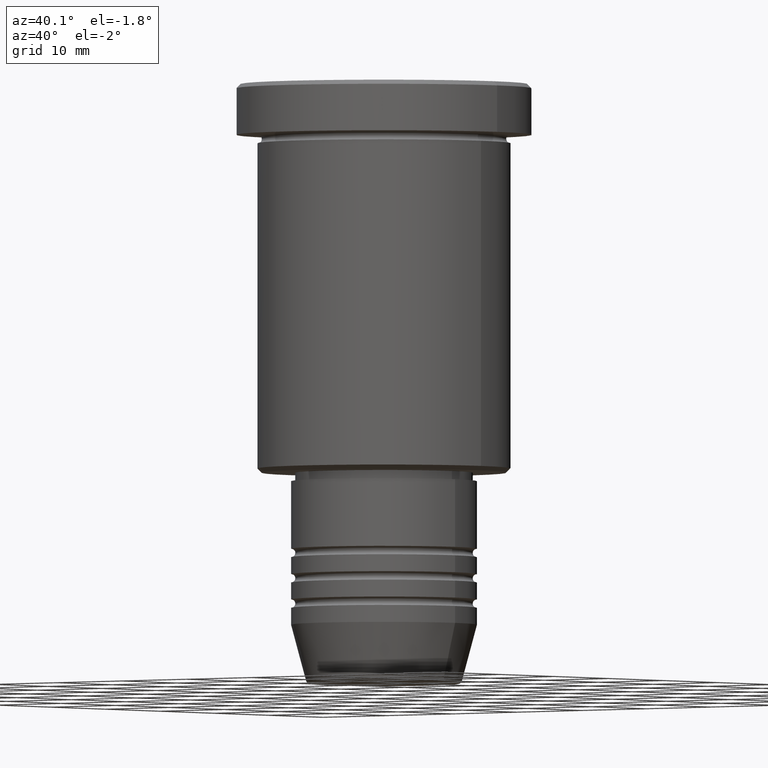
[diagram: clean part render]
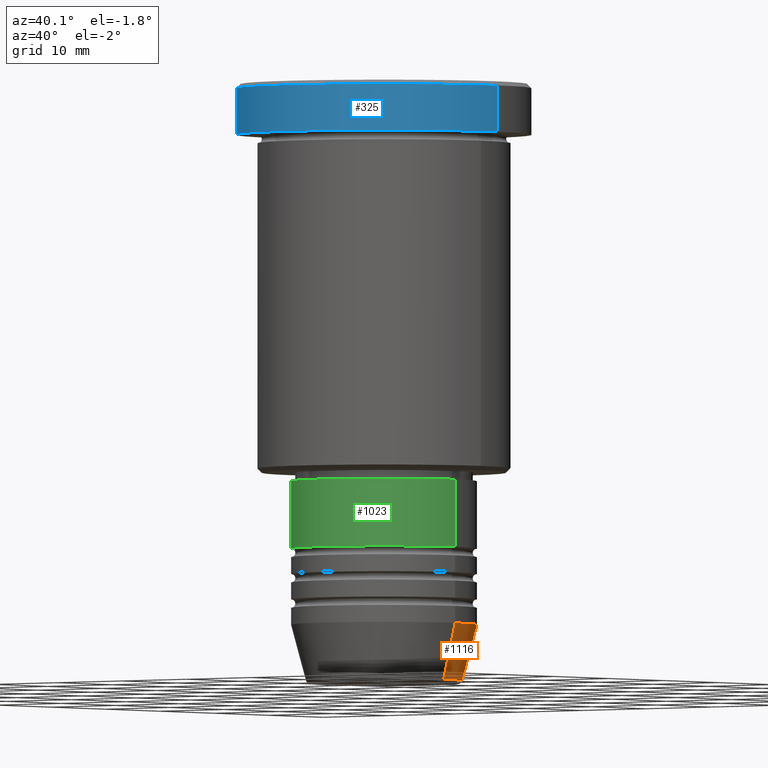
[diagram: same view with three faces highlighted in distinct colors, each labeled with its STEP entity id]
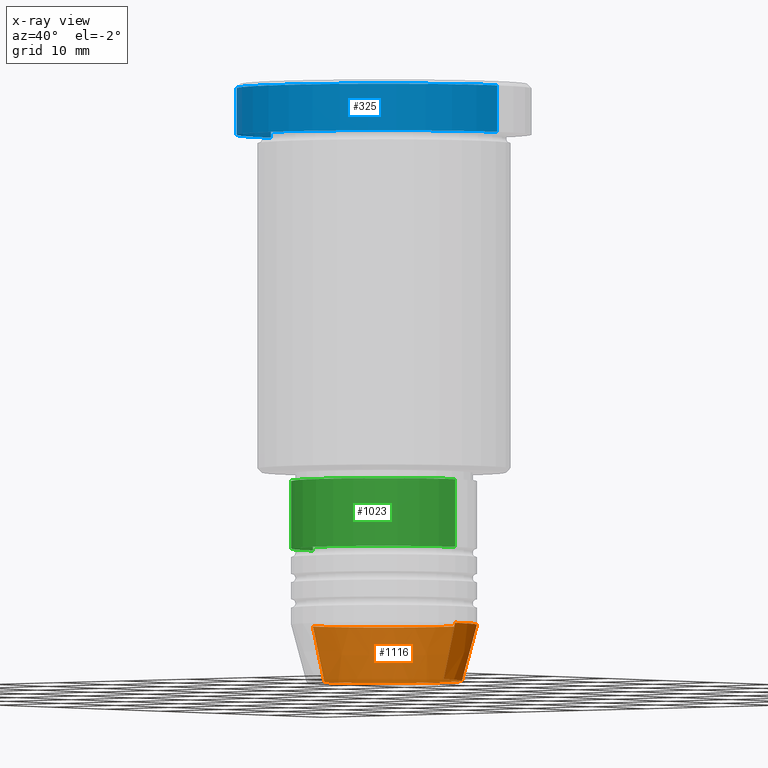
[diagram: x-ray of the same camera — body ghosted, the three highlighted faces saturated]
A machine part, auxiliary view with three faces highlighted in distinct colors.
The next image is the same camera in x-ray (body ghosted, the three faces saturated) — at least one of them is partly hidden behind the body in this view.
Their STEP definitions:

[orange] entity #1116 — the highlighted conical surface has half-angle 15 deg.
#29 = CARTESIAN_POINT ( 'NONE',  ( 0.000000000000000000, 0.000000000000000000, -64.00000000000000000 ) ) ;
#54 = DIRECTION ( 'NONE',  ( -0.2588190451025213501, 3.169619151431772337E-17, 0.9659258262890680902 ) ) ;
#96 = DIRECTION ( 'NONE',  ( 1.000000000000000000, 0.000000000000000000, 0.000000000000000000 ) ) ;
#207 = CARTESIAN_POINT ( 'NONE',  ( 9.223655072137187716, 0.000000000000000000, -70.62940952255125637 ) ) ;
#240 = EDGE_CURVE ( 'NONE', #567, #1024, #1171, .T. ) ;
#261 = LINE ( 'NONE', #451, #948 ) ;
#287 = DIRECTION ( 'NONE',  ( -0.000000000000000000, -0.000000000000000000, 1.000000000000000000 ) ) ;
#288 = AXIS2_PLACEMENT_3D ( 'NONE', #921, #1107, #96 ) ;
#292 = ORIENTED_EDGE ( 'NONE', *, *, #714, .T. ) ;
#354 = DIRECTION ( 'NONE',  ( -0.000000000000000000, -0.000000000000000000, 1.000000000000000000 ) ) ;
#375 = ORIENTED_EDGE ( 'NONE', *, *, #240, .T. ) ;
#390 = DIRECTION ( 'NONE',  ( 1.000000000000000000, 0.000000000000000000, 0.000000000000000000 ) ) ;
#403 = ORIENTED_EDGE ( 'NONE', *, *, #538, .F. ) ;
#428 = CARTESIAN_POINT ( 'NONE',  ( -9.223655072137187716, 1.238341722557647004E-15, -70.62940952255125637 ) ) ;
#451 = CARTESIAN_POINT ( 'NONE',  ( 11.00000000000000000, 0.000000000000000000, -64.00000000000000000 ) ) ;
#460 = EDGE_LOOP ( 'NONE', ( #375, #292, #520, #403 ) ) ;
#520 = ORIENTED_EDGE ( 'NONE', *, *, #957, .F. ) ;
#538 = EDGE_CURVE ( 'NONE', #567, #556, #261, .T. ) ;
#556 = VERTEX_POINT ( 'NONE', #1106 ) ;
#567 = VERTEX_POINT ( 'NONE', #207 ) ;
#682 = AXIS2_PLACEMENT_3D ( 'NONE', #706, #354, #999 ) ;
#698 = CARTESIAN_POINT ( 'NONE',  ( -11.00000000000000000, 1.347111479062088405E-15, -64.00000000000000000 ) ) ;
#706 = CARTESIAN_POINT ( 'NONE',  ( 0.000000000000000000, 0.000000000000000000, -64.00000000000000000 ) ) ;
#714 = EDGE_CURVE ( 'NONE', #1024, #786, #1127, .T. ) ;
#748 = FACE_OUTER_BOUND ( 'NONE', #460, .T. ) ;
#761 = CARTESIAN_POINT ( 'NONE',  ( -11.00000000000000000, 1.347111479062088405E-15, -64.00000000000000000 ) ) ;
#786 = VERTEX_POINT ( 'NONE', #761 ) ;
#816 = DIRECTION ( 'NONE',  ( 0.2588190451025213501, 0.000000000000000000, 0.9659258262890680902 ) ) ;
#915 = CONICAL_SURFACE ( 'NONE', #1158, 11.00000000000000000, 0.2617993877991500740 ) ;
#921 = CARTESIAN_POINT ( 'NONE',  ( 0.000000000000000000, 0.000000000000000000, -70.62940952255125637 ) ) ;
#948 = VECTOR ( 'NONE', #816, 1000.000000000000000 ) ;
#957 = EDGE_CURVE ( 'NONE', #556, #786, #969, .T. ) ;
#969 = CIRCLE ( 'NONE', #682, 11.00000000000000000 ) ;
#999 = DIRECTION ( 'NONE',  ( 1.000000000000000000, 0.000000000000000000, 0.000000000000000000 ) ) ;
#1013 = VECTOR ( 'NONE', #54, 1000.000000000000000 ) ;
#1024 = VERTEX_POINT ( 'NONE', #428 ) ;
#1106 = CARTESIAN_POINT ( 'NONE',  ( 11.00000000000000000, 0.000000000000000000, -64.00000000000000000 ) ) ;
#1107 = DIRECTION ( 'NONE',  ( -0.000000000000000000, -0.000000000000000000, 1.000000000000000000 ) ) ;
#1116 = ADVANCED_FACE ( 'NONE', ( #748 ), #915, .T. ) ;
#1127 = LINE ( 'NONE', #698, #1013 ) ;
#1158 = AXIS2_PLACEMENT_3D ( 'NONE', #29, #287, #390 ) ;
#1171 = CIRCLE ( 'NONE', #288, 9.223655072137187716 ) ;

[blue] entity #325 — the highlighted cylindrical surface (partial cylindrical patch) has radius 17.5 mm, axis along (-0, -0, 1).
#22 = VERTEX_POINT ( 'NONE', #745 ) ;
#144 = VECTOR ( 'NONE', #1027, 1000.000000000000000 ) ;
#149 = CYLINDRICAL_SURFACE ( 'NONE', #894, 17.50000000000000000 ) ;
#154 = CARTESIAN_POINT ( 'NONE',  ( 0.000000000000000000, 0.000000000000000000, 0.000000000000000000 ) ) ;
#180 = AXIS2_PLACEMENT_3D ( 'NONE', #1043, #884, #607 ) ;
#183 = AXIS2_PLACEMENT_3D ( 'NONE', #621, #525, #729 ) ;
#203 = CARTESIAN_POINT ( 'NONE',  ( -17.50000000000000000, 2.143131898507868248E-15, -5.999999999999995559 ) ) ;
#294 = VERTEX_POINT ( 'NONE', #468 ) ;
#300 = LINE ( 'NONE', #673, #144 ) ;
#321 = EDGE_CURVE ( 'NONE', #650, #22, #811, .T. ) ;
#325 = ADVANCED_FACE ( 'NONE', ( #795 ), #149, .T. ) ;
#398 = ORIENTED_EDGE ( 'NONE', *, *, #321, .T. ) ;
#468 = CARTESIAN_POINT ( 'NONE',  ( -17.50000000000000000, 2.143131898507868248E-15, -0.5000000000000213163 ) ) ;
#470 = CARTESIAN_POINT ( 'NONE',  ( 17.50000000000000000, 0.000000000000000000, -0.5000000000000213163 ) ) ;
#525 = DIRECTION ( 'NONE',  ( 0.000000000000000000, 0.000000000000000000, -1.000000000000000000 ) ) ;
#578 = VERTEX_POINT ( 'NONE', #470 ) ;
#592 = DIRECTION ( 'NONE',  ( -0.000000000000000000, -0.000000000000000000, 1.000000000000000000 ) ) ;
#607 = DIRECTION ( 'NONE',  ( 1.000000000000000000, 0.000000000000000000, 0.000000000000000000 ) ) ;
#621 = CARTESIAN_POINT ( 'NONE',  ( 0.000000000000000000, 0.000000000000000000, -0.5000000000000213163 ) ) ;
#650 = VERTEX_POINT ( 'NONE', #203 ) ;
#673 = CARTESIAN_POINT ( 'NONE',  ( -17.50000000000000000, 2.143131898507868248E-15, 0.000000000000000000 ) ) ;
#729 = DIRECTION ( 'NONE',  ( 1.000000000000000000, 0.000000000000000000, 0.000000000000000000 ) ) ;
#745 = CARTESIAN_POINT ( 'NONE',  ( 17.50000000000000000, 0.000000000000000000, -5.999999999999995559 ) ) ;
#747 = ORIENTED_EDGE ( 'NONE', *, *, #938, .T. ) ;
#759 = LINE ( 'NONE', #847, #929 ) ;
#795 = FACE_OUTER_BOUND ( 'NONE', #1099, .T. ) ;
#811 = CIRCLE ( 'NONE', #180, 17.50000000000000000 ) ;
#847 = CARTESIAN_POINT ( 'NONE',  ( 17.50000000000000000, 0.000000000000000000, 0.000000000000000000 ) ) ;
#868 = EDGE_CURVE ( 'NONE', #650, #294, #300, .T. ) ;
#884 = DIRECTION ( 'NONE',  ( -0.000000000000000000, -0.000000000000000000, 1.000000000000000000 ) ) ;
#894 = AXIS2_PLACEMENT_3D ( 'NONE', #154, #1160, #1047 ) ;
#929 = VECTOR ( 'NONE', #592, 1000.000000000000000 ) ;
#938 = EDGE_CURVE ( 'NONE', #578, #294, #987, .T. ) ;
#987 = CIRCLE ( 'NONE', #183, 17.50000000000000000 ) ;
#994 = ORIENTED_EDGE ( 'NONE', *, *, #868, .F. ) ;
#1027 = DIRECTION ( 'NONE',  ( -0.000000000000000000, -0.000000000000000000, 1.000000000000000000 ) ) ;
#1043 = CARTESIAN_POINT ( 'NONE',  ( 0.000000000000000000, 0.000000000000000000, -5.999999999999995559 ) ) ;
#1047 = DIRECTION ( 'NONE',  ( 1.000000000000000000, 0.000000000000000000, 0.000000000000000000 ) ) ;
#1099 = EDGE_LOOP ( 'NONE', ( #994, #398, #1119, #747 ) ) ;
#1119 = ORIENTED_EDGE ( 'NONE', *, *, #1128, .T. ) ;
#1128 = EDGE_CURVE ( 'NONE', #22, #578, #759, .T. ) ;
#1160 = DIRECTION ( 'NONE',  ( -0.000000000000000000, -0.000000000000000000, 1.000000000000000000 ) ) ;

[green] entity #1023 — the highlighted cylindrical surface (partial cylindrical patch) has radius 11 mm, axis along (-0, -0, 1).
#18 = EDGE_CURVE ( 'NONE', #725, #220, #199, .T. ) ;
#48 = ORIENTED_EDGE ( 'NONE', *, *, #534, .T. ) ;
#64 = DIRECTION ( 'NONE',  ( 1.000000000000000000, 0.000000000000000000, 0.000000000000000000 ) ) ;
#65 = CARTESIAN_POINT ( 'NONE',  ( -11.00000000000000000, 1.347111479062088405E-15, -54.99999999999997868 ) ) ;
#114 = EDGE_CURVE ( 'NONE', #907, #220, #604, .T. ) ;
#118 = LINE ( 'NONE', #862, #385 ) ;
#121 = CARTESIAN_POINT ( 'NONE',  ( 0.000000000000000000, 0.000000000000000000, -47.00000000000000000 ) ) ;
#130 = VERTEX_POINT ( 'NONE', #65 ) ;
#146 = ORIENTED_EDGE ( 'NONE', *, *, #114, .F. ) ;
#164 = AXIS2_PLACEMENT_3D ( 'NONE', #908, #639, #64 ) ;
#182 = CIRCLE ( 'NONE', #530, 11.00000000000000000 ) ;
#197 = CARTESIAN_POINT ( 'NONE',  ( 11.00000000000000000, 0.000000000000000000, -47.00000000000000000 ) ) ;
#199 = LINE ( 'NONE', #394, #1011 ) ;
#220 = VERTEX_POINT ( 'NONE', #197 ) ;
#253 = EDGE_CURVE ( 'NONE', #130, #907, #118, .T. ) ;
#264 = CYLINDRICAL_SURFACE ( 'NONE', #164, 11.00000000000000000 ) ;
#284 = ORIENTED_EDGE ( 'NONE', *, *, #18, .T. ) ;
#320 = CARTESIAN_POINT ( 'NONE',  ( 11.00000000000000000, 0.000000000000000000, -54.99999999999997868 ) ) ;
#340 = CARTESIAN_POINT ( 'NONE',  ( -11.00000000000000000, 1.347111479062088405E-15, -47.00000000000000000 ) ) ;
#385 = VECTOR ( 'NONE', #601, 1000.000000000000000 ) ;
#394 = CARTESIAN_POINT ( 'NONE',  ( 11.00000000000000000, 0.000000000000000000, 0.000000000000000000 ) ) ;
#400 = EDGE_LOOP ( 'NONE', ( #1021, #48, #284, #146 ) ) ;
#476 = DIRECTION ( 'NONE',  ( 1.000000000000000000, 0.000000000000000000, 0.000000000000000000 ) ) ;
#491 = DIRECTION ( 'NONE',  ( -0.000000000000000000, -0.000000000000000000, 1.000000000000000000 ) ) ;
#530 = AXIS2_PLACEMENT_3D ( 'NONE', #1081, #904, #1183 ) ;
#534 = EDGE_CURVE ( 'NONE', #130, #725, #182, .T. ) ;
#601 = DIRECTION ( 'NONE',  ( -0.000000000000000000, -0.000000000000000000, 1.000000000000000000 ) ) ;
#604 = CIRCLE ( 'NONE', #945, 11.00000000000000000 ) ;
#639 = DIRECTION ( 'NONE',  ( -0.000000000000000000, -0.000000000000000000, 1.000000000000000000 ) ) ;
#725 = VERTEX_POINT ( 'NONE', #320 ) ;
#862 = CARTESIAN_POINT ( 'NONE',  ( -11.00000000000000000, 1.347111479062088405E-15, 0.000000000000000000 ) ) ;
#902 = FACE_OUTER_BOUND ( 'NONE', #400, .T. ) ;
#904 = DIRECTION ( 'NONE',  ( -0.000000000000000000, -0.000000000000000000, 1.000000000000000000 ) ) ;
#907 = VERTEX_POINT ( 'NONE', #340 ) ;
#908 = CARTESIAN_POINT ( 'NONE',  ( 0.000000000000000000, 0.000000000000000000, 0.000000000000000000 ) ) ;
#945 = AXIS2_PLACEMENT_3D ( 'NONE', #121, #491, #476 ) ;
#1011 = VECTOR ( 'NONE', #1117, 1000.000000000000000 ) ;
#1021 = ORIENTED_EDGE ( 'NONE', *, *, #253, .F. ) ;
#1023 = ADVANCED_FACE ( 'NONE', ( #902 ), #264, .T. ) ;
#1081 = CARTESIAN_POINT ( 'NONE',  ( 0.000000000000000000, 0.000000000000000000, -54.99999999999997868 ) ) ;
#1117 = DIRECTION ( 'NONE',  ( -0.000000000000000000, -0.000000000000000000, 1.000000000000000000 ) ) ;
#1183 = DIRECTION ( 'NONE',  ( 1.000000000000000000, 0.000000000000000000, 0.000000000000000000 ) ) ;